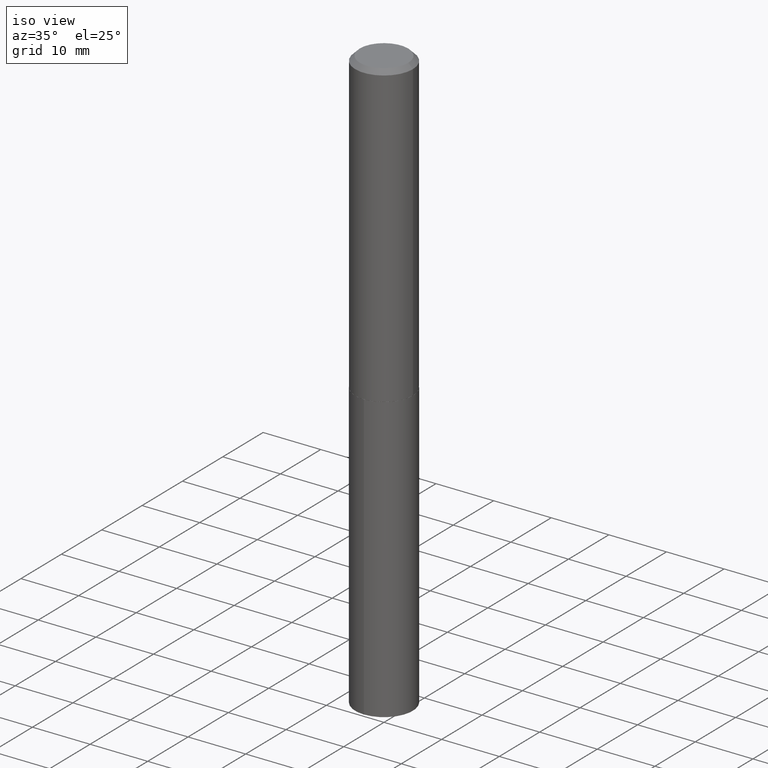
[diagram: clean part render]
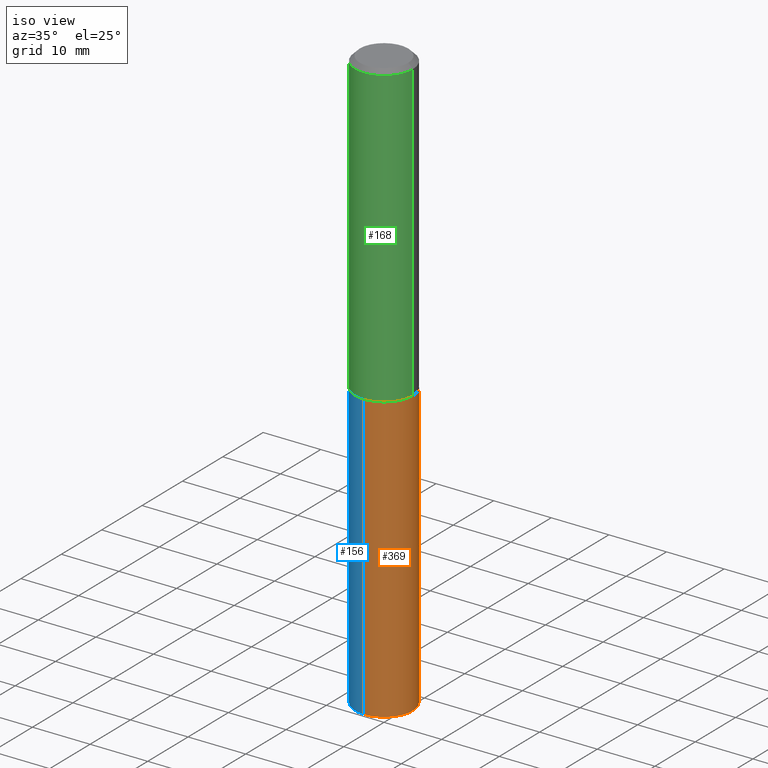
[diagram: same view with three faces highlighted in distinct colors, each labeled with its STEP entity id]
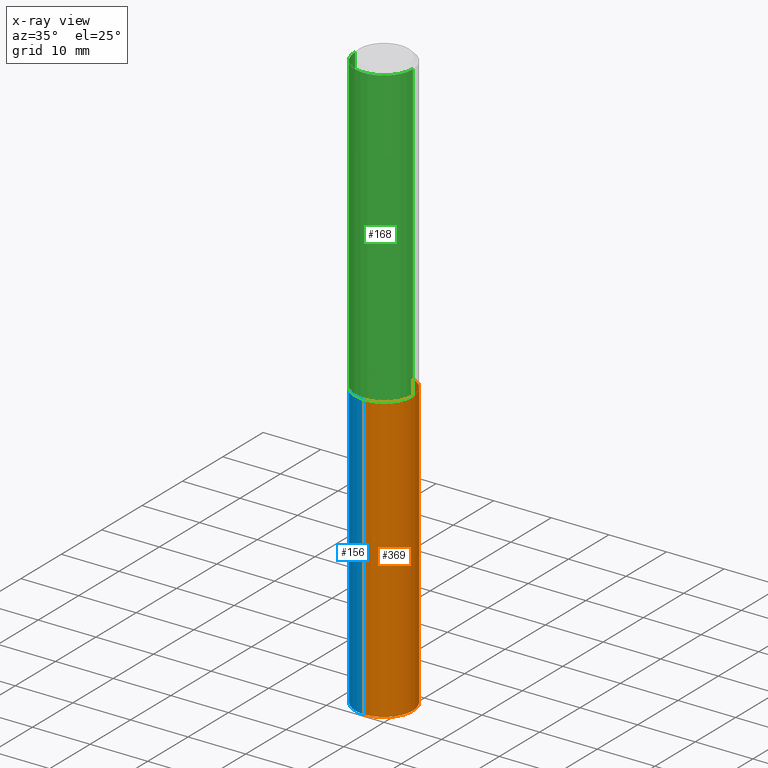
[diagram: x-ray of the same camera — body ghosted, the three highlighted faces saturated]
A machine part, iso view with three faces highlighted in distinct colors.
The next image is the same camera in x-ray (body ghosted, the three faces saturated) — at least one of them is partly hidden behind the body in this view.
Their STEP definitions:

[orange] entity #369 — the highlighted cylindrical surface (edge-blend (fillet) strip) has radius 5 mm, axis along (-0, 0, 1).
#10 = AXIS2_PLACEMENT_3D ( 'NONE', #366, #304, #153 ) ;
#14 = CARTESIAN_POINT ( 'NONE',  ( 1.398703375343854818E-15, 0.1968499999999861194, -3.993033433409173494 ) ) ;
#17 = DIRECTION ( 'NONE',  ( -2.445489491733734560E-29, 3.491451715960204700E-15, 1.000000000000000000 ) ) ;
#42 = CARTESIAN_POINT ( 'NONE',  ( 1.398703375343807091E-15, 0.1968499999999928640, -2.047200000000000575 ) ) ;
#47 = DIRECTION ( 'NONE',  ( -2.445489491733734560E-29, 3.491451715960204700E-15, 1.000000000000000000 ) ) ;
#51 = EDGE_CURVE ( 'NONE', #58, #172, #316, .T. ) ;
#58 = VERTEX_POINT ( 'NONE', #205 ) ;
#72 = AXIS2_PLACEMENT_3D ( 'NONE', #286, #17, #324 ) ;
#80 = CARTESIAN_POINT ( 'NONE',  ( -1.374596203102491516E-15, -0.1968500000000071581, -2.047199999999999243 ) ) ;
#85 = ORIENTED_EDGE ( 'NONE', *, *, #284, .F. ) ;
#88 = ORIENTED_EDGE ( 'NONE', *, *, #51, .T. ) ;
#117 = ORIENTED_EDGE ( 'NONE', *, *, #238, .F. ) ;
#122 = VECTOR ( 'NONE', #250, 39.37007874015748143 ) ;
#135 = CARTESIAN_POINT ( 'NONE',  ( 5.006363740022211680E-29, -7.147760596879688202E-15, -2.047200000000000131 ) ) ;
#153 = DIRECTION ( 'NONE',  ( -6.982962677686265133E-15, -1.000000000000000000, 2.775563112689116301E-15 ) ) ;
#162 = CARTESIAN_POINT ( 'NONE',  ( -1.374596203102491516E-15, -0.1968500000000071581, -2.047199999999999243 ) ) ;
#165 = VECTOR ( 'NONE', #192, 39.37007874015748143 ) ;
#172 = VERTEX_POINT ( 'NONE', #14 ) ;
#176 = EDGE_LOOP ( 'NONE', ( #88, #329, #117, #85 ) ) ;
#190 = LINE ( 'NONE', #42, #122 ) ;
#192 = DIRECTION ( 'NONE',  ( -2.445489491733734560E-29, 3.491451715960204306E-15, 1.000000000000000000 ) ) ;
#205 = CARTESIAN_POINT ( 'NONE',  ( -1.374596203102444184E-15, -0.1968500000000139860, -3.993033433409172606 ) ) ;
#219 = LINE ( 'NONE', #80, #165 ) ;
#226 = CYLINDRICAL_SURFACE ( 'NONE', #72, 0.1968500000000000250 ) ;
#238 = EDGE_CURVE ( 'NONE', #294, #296, #295, .T. ) ;
#250 = DIRECTION ( 'NONE',  ( -2.445489491733734560E-29, 3.491451715960204306E-15, 1.000000000000000000 ) ) ;
#281 = EDGE_CURVE ( 'NONE', #172, #296, #190, .T. ) ;
#284 = EDGE_CURVE ( 'NONE', #58, #294, #219, .T. ) ;
#286 = CARTESIAN_POINT ( 'NONE',  ( 5.006363740022211680E-29, -7.147760596879688202E-15, -2.047200000000000131 ) ) ;
#294 = VERTEX_POINT ( 'NONE', #162 ) ;
#295 = CIRCLE ( 'NONE', #363, 0.1968500000000000250 ) ;
#296 = VERTEX_POINT ( 'NONE', #342 ) ;
#304 = DIRECTION ( 'NONE',  ( -2.445489491733734560E-29, 3.491451715960204700E-15, 1.000000000000000000 ) ) ;
#316 = CIRCLE ( 'NONE', #10, 0.1968500000000000250 ) ;
#324 = DIRECTION ( 'NONE',  ( -6.982962677686265133E-15, -1.000000000000000000, 4.163344669033674845E-15 ) ) ;
#329 = ORIENTED_EDGE ( 'NONE', *, *, #281, .T. ) ;
#342 = CARTESIAN_POINT ( 'NONE',  ( 1.398703375343855015E-15, 0.1968499999999928640, -2.047200000000000575 ) ) ;
#363 = AXIS2_PLACEMENT_3D ( 'NONE', #135, #47, #375 ) ;
#366 = CARTESIAN_POINT ( 'NONE',  ( 9.764878954088519076E-29, -1.394154407692888067E-14, -3.993033433409173050 ) ) ;
#369 = ADVANCED_FACE ( 'NONE', ( #382 ), #226, .T. ) ;
#375 = DIRECTION ( 'NONE',  ( -6.982962677686265133E-15, -1.000000000000000000, 4.163344669033674845E-15 ) ) ;
#382 = FACE_OUTER_BOUND ( 'NONE', #176, .T. ) ;

[blue] entity #156 — the highlighted cylindrical surface (edge-blend (fillet) strip) has radius 5 mm, axis along (-0, 0, 1).
#14 = CARTESIAN_POINT ( 'NONE',  ( 1.398703375343854818E-15, 0.1968499999999861194, -3.993033433409173494 ) ) ;
#22 = EDGE_LOOP ( 'NONE', ( #386, #359, #164, #292 ) ) ;
#42 = CARTESIAN_POINT ( 'NONE',  ( 1.398703375343807091E-15, 0.1968499999999928640, -2.047200000000000575 ) ) ;
#58 = VERTEX_POINT ( 'NONE', #205 ) ;
#75 = DIRECTION ( 'NONE',  ( -2.445489491733734560E-29, 3.491451715960204700E-15, 1.000000000000000000 ) ) ;
#80 = CARTESIAN_POINT ( 'NONE',  ( -1.374596203102491516E-15, -0.1968500000000071581, -2.047199999999999243 ) ) ;
#84 = DIRECTION ( 'NONE',  ( -2.445489491733734560E-29, 3.491451715960204700E-15, 1.000000000000000000 ) ) ;
#86 = AXIS2_PLACEMENT_3D ( 'NONE', #257, #231, #352 ) ;
#105 = CIRCLE ( 'NONE', #301, 0.1968500000000000250 ) ;
#112 = DIRECTION ( 'NONE',  ( -6.982962677686265133E-15, -1.000000000000000000, 4.163344669033674845E-15 ) ) ;
#122 = VECTOR ( 'NONE', #250, 39.37007874015748143 ) ;
#132 = CYLINDRICAL_SURFACE ( 'NONE', #330, 0.1968500000000000250 ) ;
#156 = ADVANCED_FACE ( 'NONE', ( #158 ), #132, .T. ) ;
#158 = FACE_OUTER_BOUND ( 'NONE', #22, .T. ) ;
#162 = CARTESIAN_POINT ( 'NONE',  ( -1.374596203102491516E-15, -0.1968500000000071581, -2.047199999999999243 ) ) ;
#164 = ORIENTED_EDGE ( 'NONE', *, *, #284, .T. ) ;
#165 = VECTOR ( 'NONE', #192, 39.37007874015748143 ) ;
#172 = VERTEX_POINT ( 'NONE', #14 ) ;
#190 = LINE ( 'NONE', #42, #122 ) ;
#192 = DIRECTION ( 'NONE',  ( -2.445489491733734560E-29, 3.491451715960204306E-15, 1.000000000000000000 ) ) ;
#205 = CARTESIAN_POINT ( 'NONE',  ( -1.374596203102444184E-15, -0.1968500000000139860, -3.993033433409172606 ) ) ;
#219 = LINE ( 'NONE', #80, #165 ) ;
#231 = DIRECTION ( 'NONE',  ( -2.445489491733734560E-29, 3.491451715960204700E-15, 1.000000000000000000 ) ) ;
#250 = DIRECTION ( 'NONE',  ( -2.445489491733734560E-29, 3.491451715960204306E-15, 1.000000000000000000 ) ) ;
#253 = CARTESIAN_POINT ( 'NONE',  ( 5.006363740022211680E-29, -7.147760596879688202E-15, -2.047200000000000131 ) ) ;
#257 = CARTESIAN_POINT ( 'NONE',  ( 9.764878954088519076E-29, -1.394154407692888067E-14, -3.993033433409173050 ) ) ;
#279 = DIRECTION ( 'NONE',  ( -6.982962677686265133E-15, -1.000000000000000000, 4.163344669033674845E-15 ) ) ;
#281 = EDGE_CURVE ( 'NONE', #172, #296, #190, .T. ) ;
#282 = CARTESIAN_POINT ( 'NONE',  ( 5.006363740022211680E-29, -7.147760596879688202E-15, -2.047200000000000131 ) ) ;
#284 = EDGE_CURVE ( 'NONE', #58, #294, #219, .T. ) ;
#292 = ORIENTED_EDGE ( 'NONE', *, *, #326, .F. ) ;
#294 = VERTEX_POINT ( 'NONE', #162 ) ;
#296 = VERTEX_POINT ( 'NONE', #342 ) ;
#301 = AXIS2_PLACEMENT_3D ( 'NONE', #253, #84, #112 ) ;
#326 = EDGE_CURVE ( 'NONE', #296, #294, #105, .T. ) ;
#330 = AXIS2_PLACEMENT_3D ( 'NONE', #282, #75, #279 ) ;
#342 = CARTESIAN_POINT ( 'NONE',  ( 1.398703375343855015E-15, 0.1968499999999928640, -2.047200000000000575 ) ) ;
#348 = EDGE_CURVE ( 'NONE', #172, #58, #374, .T. ) ;
#352 = DIRECTION ( 'NONE',  ( -6.982962677686265133E-15, -1.000000000000000000, 2.775563112689116301E-15 ) ) ;
#359 = ORIENTED_EDGE ( 'NONE', *, *, #348, .T. ) ;
#374 = CIRCLE ( 'NONE', #86, 0.1968500000000000250 ) ;
#386 = ORIENTED_EDGE ( 'NONE', *, *, #281, .F. ) ;

[green] entity #168 — the highlighted cylindrical surface (edge-blend (fillet) strip) has radius 5 mm, axis along (-0, 0, 1).
#11 = LINE ( 'NONE', #346, #59 ) ;
#21 = DIRECTION ( 'NONE',  ( -2.445468806185136597E-29, 3.491481338843145583E-15, 1.000000000000000000 ) ) ;
#23 = AXIS2_PLACEMENT_3D ( 'NONE', #48, #245, #314 ) ;
#26 = ORIENTED_EDGE ( 'NONE', *, *, #378, .F. ) ;
#30 = CIRCLE ( 'NONE', #379, 0.1968500000000002470 ) ;
#35 = EDGE_CURVE ( 'NONE', #203, #319, #266, .T. ) ;
#48 = CARTESIAN_POINT ( 'NONE',  ( 0.000000000000000000, 0.000000000000000000, 0.000000000000000000 ) ) ;
#59 = VECTOR ( 'NONE', #318, 39.37007874015748143 ) ;
#79 = FACE_OUTER_BOUND ( 'NONE', #213, .T. ) ;
#91 = CARTESIAN_POINT ( 'NONE',  ( 7.642090019328601786E-31, -1.091087918388490144E-16, -0.03125000000000020123 ) ) ;
#108 = EDGE_CURVE ( 'NONE', #203, #170, #30, .T. ) ;
#111 = CIRCLE ( 'NONE', #130, 0.1968500000000000250 ) ;
#123 = EDGE_CURVE ( 'NONE', #170, #367, #11, .T. ) ;
#130 = AXIS2_PLACEMENT_3D ( 'NONE', #91, #21, #202 ) ;
#139 = ORIENTED_EDGE ( 'NONE', *, *, #123, .T. ) ;
#155 = CARTESIAN_POINT ( 'NONE',  ( 5.005141005619118879E-29, -7.146014856210265909E-15, -2.046699999999999964 ) ) ;
#163 = CARTESIAN_POINT ( 'NONE',  ( 0.1968500000000000250, -1.483704994941390709E-15, -0.03125000000000020123 ) ) ;
#168 = ADVANCED_FACE ( 'NONE', ( #79 ), #317, .T. ) ;
#170 = VERTEX_POINT ( 'NONE', #376 ) ;
#173 = VECTOR ( 'NONE', #270, 39.37007874015748143 ) ;
#202 = DIRECTION ( 'NONE',  ( 1.000000000000000000, -6.982962677686265922E-15, 0.000000000000000000 ) ) ;
#203 = VERTEX_POINT ( 'NONE', #283 ) ;
#213 = EDGE_LOOP ( 'NONE', ( #388, #355, #139, #26 ) ) ;
#218 = DIRECTION ( 'NONE',  ( -2.445468806185136597E-29, 3.491481338843145583E-15, 1.000000000000000000 ) ) ;
#229 = CARTESIAN_POINT ( 'NONE',  ( -0.1968500000000000250, -2.228858448680798929E-15, -0.03125000000000020123 ) ) ;
#245 = DIRECTION ( 'NONE',  ( -2.445468806185136597E-29, 3.491481338843145583E-15, 1.000000000000000000 ) ) ;
#266 = LINE ( 'NONE', #274, #173 ) ;
#270 = DIRECTION ( 'NONE',  ( -2.445468806185136877E-29, 3.491481338843145188E-15, 1.000000000000000000 ) ) ;
#274 = CARTESIAN_POINT ( 'NONE',  ( -0.1968500000000001082, 1.398703375343757985E-15, -9.682923725166787881E-30 ) ) ;
#278 = DIRECTION ( 'NONE',  ( 1.000000000000000000, -6.982962677686269866E-15, 0.000000000000000000 ) ) ;
#283 = CARTESIAN_POINT ( 'NONE',  ( -0.1968500000000002470, -5.747311480866507333E-15, -2.046699999999999964 ) ) ;
#314 = DIRECTION ( 'NONE',  ( 1.000000000000000000, -6.982962677686266711E-15, 4.876176775795935793E-29 ) ) ;
#317 = CYLINDRICAL_SURFACE ( 'NONE', #23, 0.1968500000000001082 ) ;
#318 = DIRECTION ( 'NONE',  ( -2.445468806185136877E-29, 3.491481338843145188E-15, 1.000000000000000000 ) ) ;
#319 = VERTEX_POINT ( 'NONE', #229 ) ;
#346 = CARTESIAN_POINT ( 'NONE',  ( 0.1968500000000001082, -1.374596203102542397E-15, 9.598753983154305062E-30 ) ) ;
#355 = ORIENTED_EDGE ( 'NONE', *, *, #108, .T. ) ;
#367 = VERTEX_POINT ( 'NONE', #163 ) ;
#376 = CARTESIAN_POINT ( 'NONE',  ( 0.1968500000000002470, -8.520611059312810673E-15, -2.046699999999999964 ) ) ;
#378 = EDGE_CURVE ( 'NONE', #319, #367, #111, .T. ) ;
#379 = AXIS2_PLACEMENT_3D ( 'NONE', #155, #218, #278 ) ;
#388 = ORIENTED_EDGE ( 'NONE', *, *, #35, .F. ) ;